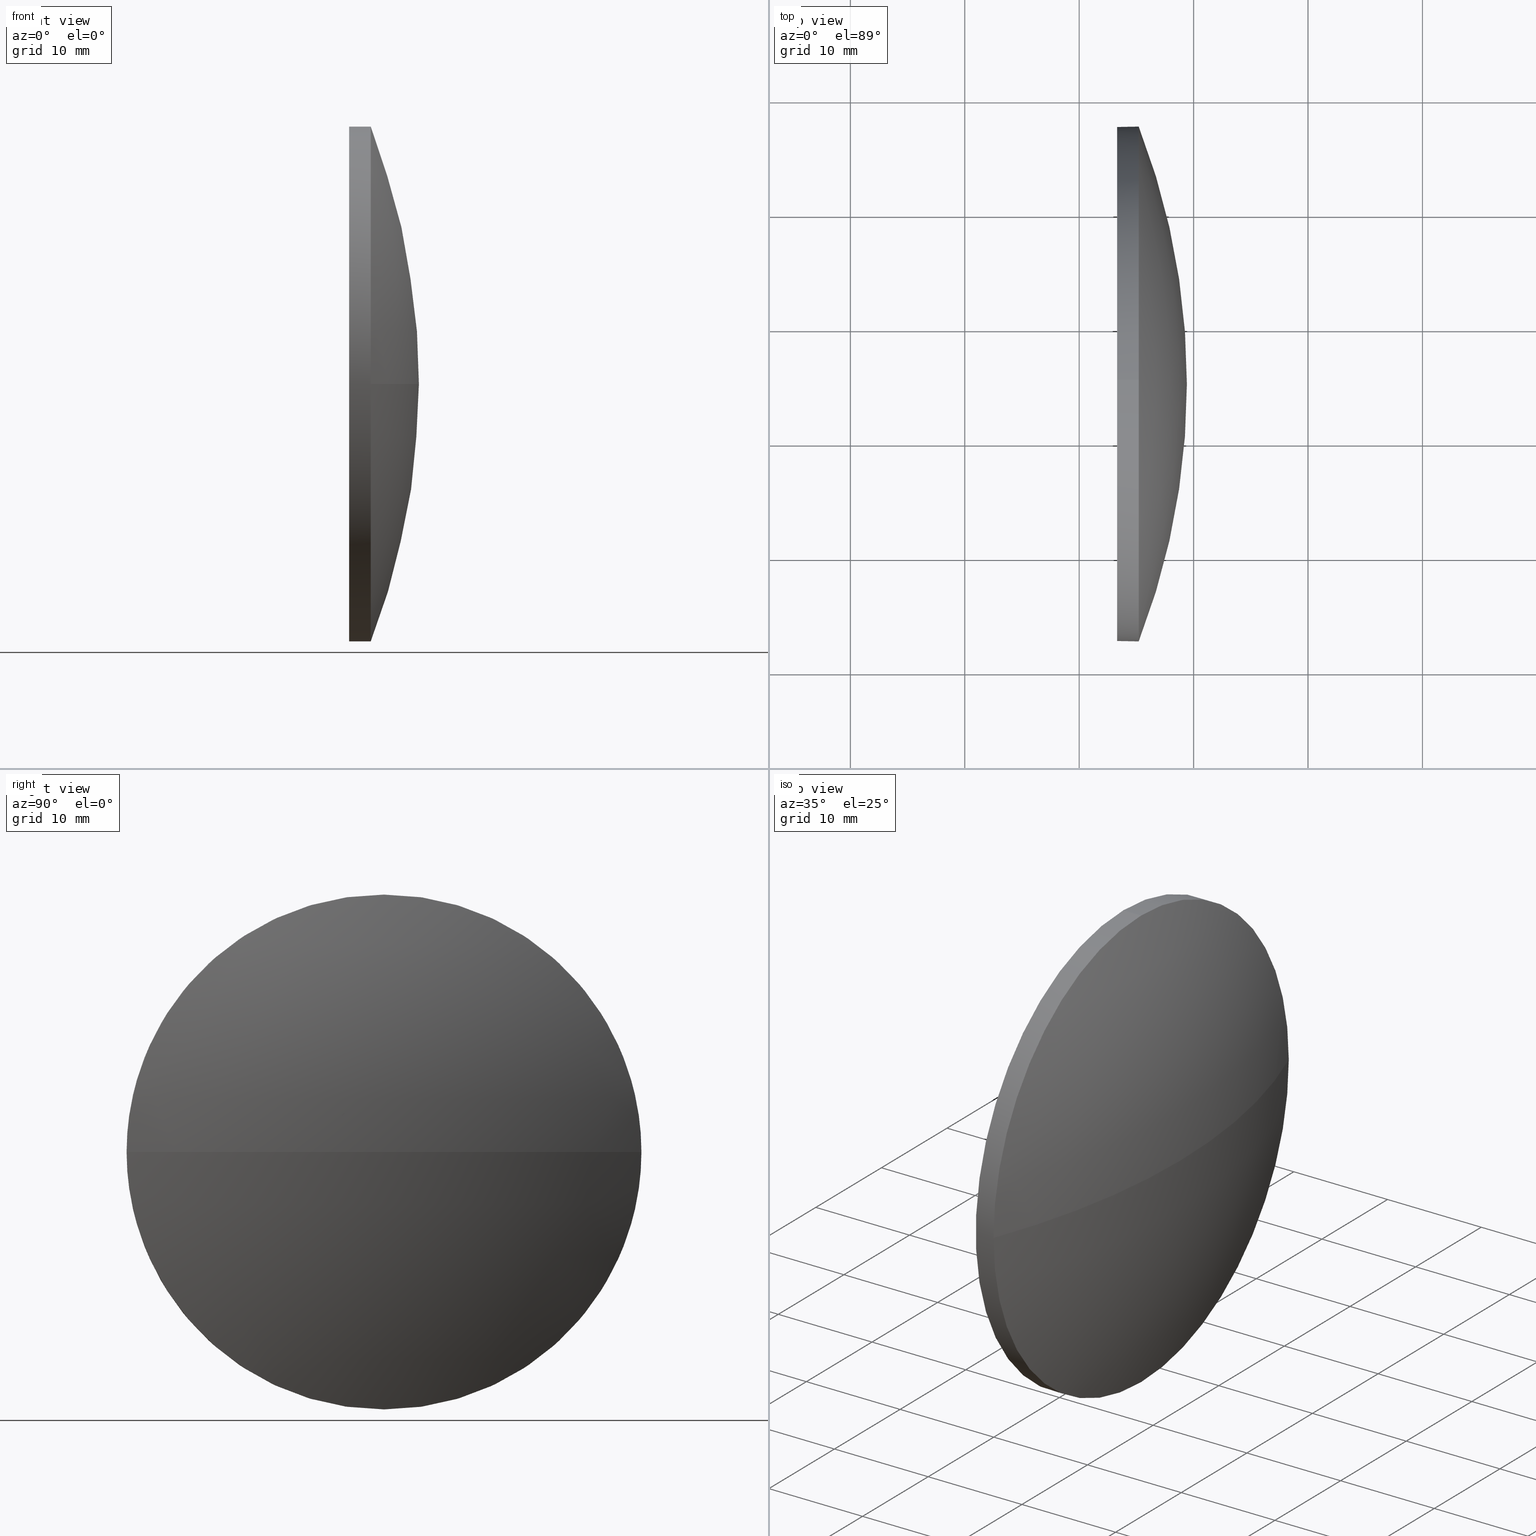
[diagram: canonical four-view strip — front | top / right | iso, engineering-drawing reading convention]
A machine part, canonical four-view strip (front | top / right | iso — engineering-drawing reading convention). The complete STEP part file that produces these views, byte-faithful:
ISO-10303-21;
HEADER;
FILE_DESCRIPTION (( 'STEP AP214' ),
    '1' );
FILE_NAME ('100151.STEP',
    '2019-05-16T01:24:20',
    ( '' ),
    ( '' ),
    'SwSTEP 2.0',
    'SolidWorks 2016',
    '' );
FILE_SCHEMA (( 'AUTOMOTIVE_DESIGN' ));
ENDSEC;

DATA;
#1 = SHAPE_DEFINITION_REPRESENTATION ( #44, #74 ) ;
#2 = AXIS2_PLACEMENT_3D ( 'NONE', #19, #32, #178 ) ;
#3 =( LENGTH_UNIT ( ) NAMED_UNIT ( * ) SI_UNIT ( .MILLI., .METRE. ) );
#4 = VERTEX_POINT ( 'NONE', #144 ) ;
#5 = FILL_AREA_STYLE_COLOUR ( '', #36 ) ;
#6 = AXIS2_PLACEMENT_3D ( 'NONE', #55, #26, #130 ) ;
#7 =( NAMED_UNIT ( * ) PLANE_ANGLE_UNIT ( ) SI_UNIT ( $, .RADIAN. ) );
#8 = CIRCLE ( 'NONE', #160, 62.22970308788603000 ) ;
#9 = AXIS2_PLACEMENT_3D ( 'NONE', #157, #145, #174 ) ;
#10 = EDGE_CURVE ( 'NONE', #4, #63, #125, .T. ) ;
#11 = CYLINDRICAL_SURFACE ( 'NONE', #31, 22.50000000000000700 ) ;
#12 = CARTESIAN_POINT ( 'NONE',  ( 57.18407886987994700, 65.02094537996227100, 0.0000000000000000000 ) ) ;
#13 = CARTESIAN_POINT ( 'NONE',  ( 108.6655743304436500, 65.02094537996225700, 0.0000000000000000000 ) ) ;
#14 = DIRECTION ( 'NONE',  ( -1.000000000000000000, -0.0000000000000000000, -0.0000000000000000000 ) ) ;
#15 = PRESENTATION_LAYER_ASSIGNMENT (  '', '', ( #17 ) ) ;
#16 = ORIENTED_EDGE ( 'NONE', *, *, #172, .T. ) ;
#17 = STYLED_ITEM ( 'NONE', ( #158 ), #51 ) ;
#18 = FILL_AREA_STYLE ('',( #5 ) ) ;
#19 = CARTESIAN_POINT ( 'NONE',  ( 57.18407886987994700, 65.02094537996227100, 0.0000000000000000000 ) ) ;
#20 = SURFACE_STYLE_FILL_AREA ( #171 ) ;
#21 = APPLICATION_PROTOCOL_DEFINITION ( 'draft international standard', 'automotive_design', 1998, #24 ) ;
#22 = EDGE_LOOP ( 'NONE', ( #131, #107 ) ) ;
#23 = UNCERTAINTY_MEASURE_WITH_UNIT (LENGTH_MEASURE( 1.000000000000000100E-005 ), #95, 'distance_accuracy_value', 'NONE');
#24 = APPLICATION_CONTEXT ( 'automotive_design' ) ;
#25 = ORIENTED_EDGE ( 'NONE', *, *, #148, .F. ) ;
#26 = DIRECTION ( 'NONE',  ( -1.000000000000000000, -0.0000000000000000000, -0.0000000000000000000 ) ) ;
#27 = DIRECTION ( 'NONE',  ( 0.0000000000000000000, 0.0000000000000000000, 1.000000000000000000 ) ) ;
#28 = CARTESIAN_POINT ( 'NONE',  ( 108.6655743304436500, 65.02094537996225700, 0.0000000000000000000 ) ) ;
#29 =( GEOMETRIC_REPRESENTATION_CONTEXT ( 3 ) GLOBAL_UNCERTAINTY_ASSIGNED_CONTEXT ( ( #115 ) ) GLOBAL_UNIT_ASSIGNED_CONTEXT ( ( #94, #166, #59 ) ) REPRESENTATION_CONTEXT ( 'NONE', 'WORKASPACE' ) );
#30 = SURFACE_SIDE_STYLE ('',( #56 ) ) ;
#31 = AXIS2_PLACEMENT_3D ( 'NONE', #13, #39, #119 ) ;
#32 = DIRECTION ( 'NONE',  ( 0.0000000000000000000, -1.224646799147353200E-016, 1.000000000000000000 ) ) ;
#33 = CIRCLE ( 'NONE', #9, 22.50000000000000700 ) ;
#34 = ADVANCED_FACE ( 'NONE', ( #87 ), #11, .T. ) ;
#35 = AXIS2_PLACEMENT_3D ( 'NONE', #28, #14, #185 ) ;
#36 = COLOUR_RGB ( '',1.000000000000000000, 1.000000000000000000, 1.000000000000000000 ) ;
#37 =( GEOMETRIC_REPRESENTATION_CONTEXT ( 3 ) GLOBAL_UNCERTAINTY_ASSIGNED_CONTEXT ( ( #132 ) ) GLOBAL_UNIT_ASSIGNED_CONTEXT ( ( #3, #161, #177 ) ) REPRESENTATION_CONTEXT ( 'NONE', 'WORKASPACE' ) );
#38 = VECTOR ( 'NONE', #123, 1000.000000000000000 ) ;
#39 = DIRECTION ( 'NONE',  ( -1.000000000000000000, -0.0000000000000000000, -0.0000000000000000000 ) ) ;
#40 = CARTESIAN_POINT ( 'NONE',  ( 113.3137819577659700, 65.02094537996225700, -22.50000000000000700 ) ) ;
#41 = DIRECTION ( 'NONE',  ( 0.0000000000000000000, -1.000000000000000000, 0.0000000000000000000 ) ) ;
#42 = CYLINDRICAL_SURFACE ( 'NONE', #35, 22.50000000000000700 ) ;
#43 = AXIS2_PLACEMENT_3D ( 'NONE', #66, #173, #86 ) ;
#44 = PRODUCT_DEFINITION_SHAPE ( 'NONE', 'NONE',  #169 ) ;
#45 = CARTESIAN_POINT ( 'NONE',  ( 113.3137819577659700, 65.02094537996225700, 0.0000000000000000000 ) ) ;
#46 = CARTESIAN_POINT ( 'NONE',  ( 57.18407886987994700, 65.02094537996227100, 0.0000000000000000000 ) ) ;
#47 = CLOSED_SHELL ( 'NONE', ( #79, #112, #180, #34, #114 ) ) ;
#48 = ORIENTED_EDGE ( 'NONE', *, *, #181, .F. ) ;
#49 = COLOUR_RGB ( '',1.000000000000000000, 1.000000000000000000, 1.000000000000000000 ) ;
#50 = ORIENTED_EDGE ( 'NONE', *, *, #148, .T. ) ;
#51 = MANIFOLD_SOLID_BREP ( '��ת1', #47 ) ;
#52 = ORIENTED_EDGE ( 'NONE', *, *, #152, .F. ) ;
#53 = DIRECTION ( 'NONE',  ( 1.000000000000000000, 0.0000000000000000000, 0.0000000000000000000 ) ) ;
#54 = CARTESIAN_POINT ( 'NONE',  ( 113.3137819577659700, 65.02094537996225700, 22.50000000000000700 ) ) ;
#55 = CARTESIAN_POINT ( 'NONE',  ( 115.2037819577659700, 65.02094537996225700, 0.0000000000000000000 ) ) ;
#56 = SURFACE_STYLE_FILL_AREA ( #18 ) ;
#57 = DIRECTION ( 'NONE',  ( 0.0000000000000000000, 0.0000000000000000000, 1.000000000000000000 ) ) ;
#58 = ORIENTED_EDGE ( 'NONE', *, *, #124, .T. ) ;
#59 =( NAMED_UNIT ( * ) SI_UNIT ( $, .STERADIAN. ) SOLID_ANGLE_UNIT ( ) );
#60 = AXIS2_PLACEMENT_3D ( 'NONE', #120, #156, #170 ) ;
#61 = EDGE_LOOP ( 'NONE', ( #25, #126, #97, #168 ) ) ;
#62 = DIRECTION ( 'NONE',  ( -1.000000000000000000, -0.0000000000000000000, -0.0000000000000000000 ) ) ;
#63 = VERTEX_POINT ( 'NONE', #118 ) ;
#64 = SPHERICAL_SURFACE ( 'NONE', #127, 62.22970308788603000 ) ;
#65 = FACE_OUTER_BOUND ( 'NONE', #100, .T. ) ;
#66 = CARTESIAN_POINT ( 'NONE',  ( 115.2037819577659700, 65.02094537996225700, 0.0000000000000000000 ) ) ;
#67 = FILL_AREA_STYLE_COLOUR ( '', #49 ) ;
#68 = AXIS2_PLACEMENT_3D ( 'NONE', #134, #106, #57 ) ;
#69 = DIRECTION ( 'NONE',  ( -1.000000000000000000, -0.0000000000000000000, -0.0000000000000000000 ) ) ;
#70 = PLANE ( 'NONE',  #60 ) ;
#71 = DIRECTION ( 'NONE',  ( -1.000000000000000000, -0.0000000000000000000, -0.0000000000000000000 ) ) ;
#72 = FACE_OUTER_BOUND ( 'NONE', #175, .T. ) ;
#73 =( GEOMETRIC_REPRESENTATION_CONTEXT ( 3 ) GLOBAL_UNCERTAINTY_ASSIGNED_CONTEXT ( ( #23 ) ) GLOBAL_UNIT_ASSIGNED_CONTEXT ( ( #95, #7, #150 ) ) REPRESENTATION_CONTEXT ( 'NONE', 'WORKASPACE' ) );
#74 = ADVANCED_BREP_SHAPE_REPRESENTATION ( '100151', ( #51, #108 ), #37 ) ;
#75 = SURFACE_STYLE_USAGE ( .BOTH. , #30 ) ;
#76 = DIRECTION ( 'NONE',  ( 0.0000000000000000000, 0.0000000000000000000, 1.000000000000000000 ) ) ;
#77 = DIRECTION ( 'NONE',  ( 0.0000000000000000000, 0.0000000000000000000, 1.000000000000000000 ) ) ;
#78 = LINE ( 'NONE', #138, #38 ) ;
#79 = ADVANCED_FACE ( 'NONE', ( #65 ), #42, .T. ) ;
#80 = MECHANICAL_DESIGN_GEOMETRIC_PRESENTATION_REPRESENTATION (  '', ( #17 ), #29 ) ;
#81 = MECHANICAL_DESIGN_GEOMETRIC_PRESENTATION_REPRESENTATION (  '', ( #99 ), #73 ) ;
#82 = CIRCLE ( 'NONE', #98, 22.50000000000000700 ) ;
#83 = ORIENTED_EDGE ( 'NONE', *, *, #113, .T. ) ;
#84 = DIRECTION ( 'NONE',  ( 0.0000000000000000000, 0.0000000000000000000, 1.000000000000000000 ) ) ;
#85 = CARTESIAN_POINT ( 'NONE',  ( 0.0000000000000000000, 0.0000000000000000000, 0.0000000000000000000 ) ) ;
#86 = DIRECTION ( 'NONE',  ( 0.0000000000000000000, 0.0000000000000000000, 1.000000000000000000 ) ) ;
#87 = FACE_OUTER_BOUND ( 'NONE', #164, .T. ) ;
#88 = AXIS2_PLACEMENT_3D ( 'NONE', #45, #62, #76 ) ;
#89 = ORIENTED_EDGE ( 'NONE', *, *, #172, .F. ) ;
#90 = ORIENTED_EDGE ( 'NONE', *, *, #128, .T. ) ;
#91 = CARTESIAN_POINT ( 'NONE',  ( 115.2037819577659700, 42.52094537996224900, 0.0000000000000000000 ) ) ;
#92 = PRODUCT_DEFINITION_FORMATION_WITH_SPECIFIED_SOURCE ( '�κ�', '', #117, .NOT_KNOWN. ) ;
#93 = DIRECTION ( 'NONE',  ( 0.0000000000000000000, -1.000000000000000000, 0.0000000000000000000 ) ) ;
#94 =( LENGTH_UNIT ( ) NAMED_UNIT ( * ) SI_UNIT ( .MILLI., .METRE. ) );
#95 =( LENGTH_UNIT ( ) NAMED_UNIT ( * ) SI_UNIT ( .MILLI., .METRE. ) );
#96 = VERTEX_POINT ( 'NONE', #54 ) ;
#97 = ORIENTED_EDGE ( 'NONE', *, *, #113, .F. ) ;
#98 = AXIS2_PLACEMENT_3D ( 'NONE', #133, #69, #84 ) ;
#99 = STYLED_ITEM ( 'NONE', ( #105 ), #74 ) ;
#100 = EDGE_LOOP ( 'NONE', ( #176, #16, #122, #154, #83 ) ) ;
#101 = EDGE_CURVE ( 'NONE', #96, #129, #33, .T. ) ;
#102 = CARTESIAN_POINT ( 'NONE',  ( 115.2037819577659700, 65.02094537996225700, 22.50000000000000700 ) ) ;
#103 = SURFACE_STYLE_USAGE ( .BOTH. , #184 ) ;
#104 = PRODUCT_RELATED_PRODUCT_CATEGORY ( 'part', '', ( #117 ) ) ;
#105 = PRESENTATION_STYLE_ASSIGNMENT (( #75 ) ) ;
#106 = DIRECTION ( 'NONE',  ( -1.000000000000000000, -0.0000000000000000000, -0.0000000000000000000 ) ) ;
#107 = ORIENTED_EDGE ( 'NONE', *, *, #152, .T. ) ;
#108 = AXIS2_PLACEMENT_3D ( 'NONE', #85, #163, #53 ) ;
#109 = DIRECTION ( 'NONE',  ( 0.0000000000000000000, 0.0000000000000000000, -1.000000000000000000 ) ) ;
#110 = AXIS2_PLACEMENT_3D ( 'NONE', #12, #27, #41 ) ;
#111 = LINE ( 'NONE', #155, #121 ) ;
#112 = ADVANCED_FACE ( 'NONE', ( #182 ), #151, .T. ) ;
#113 = EDGE_CURVE ( 'NONE', #139, #4, #116, .T. ) ;
#114 = ADVANCED_FACE ( 'NONE', ( #186 ), #70, .F. ) ;
#115 = UNCERTAINTY_MEASURE_WITH_UNIT (LENGTH_MEASURE( 1.000000000000000100E-005 ), #94, 'distance_accuracy_value', 'NONE');
#116 = CIRCLE ( 'NONE', #43, 22.50000000000000700 ) ;
#117 = PRODUCT ( '100151', '100151', '', ( #165 ) ) ;
#118 = CARTESIAN_POINT ( 'NONE',  ( 115.2037819577659700, 65.02094537996225700, -22.50000000000000700 ) ) ;
#119 = DIRECTION ( 'NONE',  ( 0.0000000000000000000, 0.0000000000000000000, 1.000000000000000000 ) ) ;
#120 = CARTESIAN_POINT ( 'NONE',  ( 113.3137819577659700, 65.02094537996225700, 0.0000000000000000000 ) ) ;
#121 = VECTOR ( 'NONE', #71, 1000.000000000000000 ) ;
#122 = ORIENTED_EDGE ( 'NONE', *, *, #101, .F. ) ;
#123 = DIRECTION ( 'NONE',  ( -1.000000000000000000, -0.0000000000000000000, -0.0000000000000000000 ) ) ;
#124 = EDGE_CURVE ( 'NONE', #141, #139, #82, .T. ) ;
#125 = CIRCLE ( 'NONE', #6, 22.50000000000000700 ) ;
#126 = ORIENTED_EDGE ( 'NONE', *, *, #181, .T. ) ;
#127 = AXIS2_PLACEMENT_3D ( 'NONE', #162, #77, #93 ) ;
#128 = EDGE_CURVE ( 'NONE', #63, #141, #146, .T. ) ;
#129 = VERTEX_POINT ( 'NONE', #40 ) ;
#130 = DIRECTION ( 'NONE',  ( 0.0000000000000000000, 0.0000000000000000000, 1.000000000000000000 ) ) ;
#131 = ORIENTED_EDGE ( 'NONE', *, *, #101, .T. ) ;
#132 = UNCERTAINTY_MEASURE_WITH_UNIT (LENGTH_MEASURE( 1.000000000000000100E-005 ), #3, 'distance_accuracy_value', 'NONE');
#133 = CARTESIAN_POINT ( 'NONE',  ( 115.2037819577659700, 65.02094537996225700, 0.0000000000000000000 ) ) ;
#134 = CARTESIAN_POINT ( 'NONE',  ( 115.2037819577659700, 65.02094537996225700, 0.0000000000000000000 ) ) ;
#135 = VERTEX_POINT ( 'NONE', #143 ) ;
#136 = APPLICATION_PROTOCOL_DEFINITION ( 'draft international standard', 'automotive_design', 1998, #179 ) ;
#137 = EDGE_CURVE ( 'NONE', #139, #96, #111, .T. ) ;
#138 = CARTESIAN_POINT ( 'NONE',  ( 108.6655743304436500, 65.02094537996225700, -22.50000000000000700 ) ) ;
#139 = VERTEX_POINT ( 'NONE', #102 ) ;
#140 = ORIENTED_EDGE ( 'NONE', *, *, #10, .F. ) ;
#141 = VERTEX_POINT ( 'NONE', #91 ) ;
#142 = PRODUCT_DEFINITION_CONTEXT ( 'detailed design', #24, 'design' ) ;
#143 = CARTESIAN_POINT ( 'NONE',  ( 119.4137819577659800, 65.02094537996227100, 0.0000000000000000000 ) ) ;
#144 = CARTESIAN_POINT ( 'NONE',  ( 115.2037819577659700, 87.52094537996227100, 2.755455298081545200E-015 ) ) ;
#145 = DIRECTION ( 'NONE',  ( -1.000000000000000000, -0.0000000000000000000, -0.0000000000000000000 ) ) ;
#146 = CIRCLE ( 'NONE', #68, 22.50000000000000700 ) ;
#147 = PRESENTATION_LAYER_ASSIGNMENT (  '', '', ( #99 ) ) ;
#148 = EDGE_CURVE ( 'NONE', #135, #141, #8, .T. ) ;
#149 = DIRECTION ( 'NONE',  ( -1.000000000000000000, 0.0000000000000000000, 0.0000000000000000000 ) ) ;
#150 =( NAMED_UNIT ( * ) SI_UNIT ( $, .STERADIAN. ) SOLID_ANGLE_UNIT ( ) );
#151 = SPHERICAL_SURFACE ( 'NONE', #110, 62.22970308788603000 ) ;
#152 = EDGE_CURVE ( 'NONE', #129, #96, #153, .T. ) ;
#153 = CIRCLE ( 'NONE', #88, 22.50000000000000700 ) ;
#154 = ORIENTED_EDGE ( 'NONE', *, *, #137, .F. ) ;
#155 = CARTESIAN_POINT ( 'NONE',  ( 108.6655743304436500, 65.02094537996225700, 22.50000000000000700 ) ) ;
#156 = DIRECTION ( 'NONE',  ( 1.000000000000000000, 0.0000000000000000000, 0.0000000000000000000 ) ) ;
#157 = CARTESIAN_POINT ( 'NONE',  ( 113.3137819577659700, 65.02094537996225700, 0.0000000000000000000 ) ) ;
#158 = PRESENTATION_STYLE_ASSIGNMENT (( #103 ) ) ;
#159 = ORIENTED_EDGE ( 'NONE', *, *, #128, .F. ) ;
#160 = AXIS2_PLACEMENT_3D ( 'NONE', #46, #109, #149 ) ;
#161 =( NAMED_UNIT ( * ) PLANE_ANGLE_UNIT ( ) SI_UNIT ( $, .RADIAN. ) );
#162 = CARTESIAN_POINT ( 'NONE',  ( 57.18407886987994700, 65.02094537996227100, 0.0000000000000000000 ) ) ;
#163 = DIRECTION ( 'NONE',  ( 0.0000000000000000000, 0.0000000000000000000, 1.000000000000000000 ) ) ;
#164 = EDGE_LOOP ( 'NONE', ( #89, #90, #58, #167, #52 ) ) ;
#165 = PRODUCT_CONTEXT ( 'NONE', #179, 'mechanical' ) ;
#166 =( NAMED_UNIT ( * ) PLANE_ANGLE_UNIT ( ) SI_UNIT ( $, .RADIAN. ) );
#167 = ORIENTED_EDGE ( 'NONE', *, *, #137, .T. ) ;
#168 = ORIENTED_EDGE ( 'NONE', *, *, #124, .F. ) ;
#169 = PRODUCT_DEFINITION ( 'δ֪', '', #92, #142 ) ;
#170 = DIRECTION ( 'NONE',  ( 0.0000000000000000000, 0.0000000000000000000, -1.000000000000000000 ) ) ;
#171 = FILL_AREA_STYLE ('',( #67 ) ) ;
#172 = EDGE_CURVE ( 'NONE', #63, #129, #78, .T. ) ;
#173 = DIRECTION ( 'NONE',  ( -1.000000000000000000, -0.0000000000000000000, -0.0000000000000000000 ) ) ;
#174 = DIRECTION ( 'NONE',  ( 0.0000000000000000000, 0.0000000000000000000, 1.000000000000000000 ) ) ;
#175 = EDGE_LOOP ( 'NONE', ( #48, #50, #159, #140 ) ) ;
#176 = ORIENTED_EDGE ( 'NONE', *, *, #10, .T. ) ;
#177 =( NAMED_UNIT ( * ) SI_UNIT ( $, .STERADIAN. ) SOLID_ANGLE_UNIT ( ) );
#178 = DIRECTION ( 'NONE',  ( 0.0000000000000000000, -1.000000000000000000, -1.224646799147353200E-016 ) ) ;
#179 = APPLICATION_CONTEXT ( 'automotive_design' ) ;
#180 = ADVANCED_FACE ( 'NONE', ( #72 ), #64, .T. ) ;
#181 = EDGE_CURVE ( 'NONE', #135, #4, #183, .T. ) ;
#182 = FACE_OUTER_BOUND ( 'NONE', #61, .T. ) ;
#183 = CIRCLE ( 'NONE', #2, 62.22970308788603000 ) ;
#184 = SURFACE_SIDE_STYLE ('',( #20 ) ) ;
#185 = DIRECTION ( 'NONE',  ( 0.0000000000000000000, 0.0000000000000000000, 1.000000000000000000 ) ) ;
#186 = FACE_OUTER_BOUND ( 'NONE', #22, .T. ) ;
ENDSEC;
END-ISO-10303-21;
